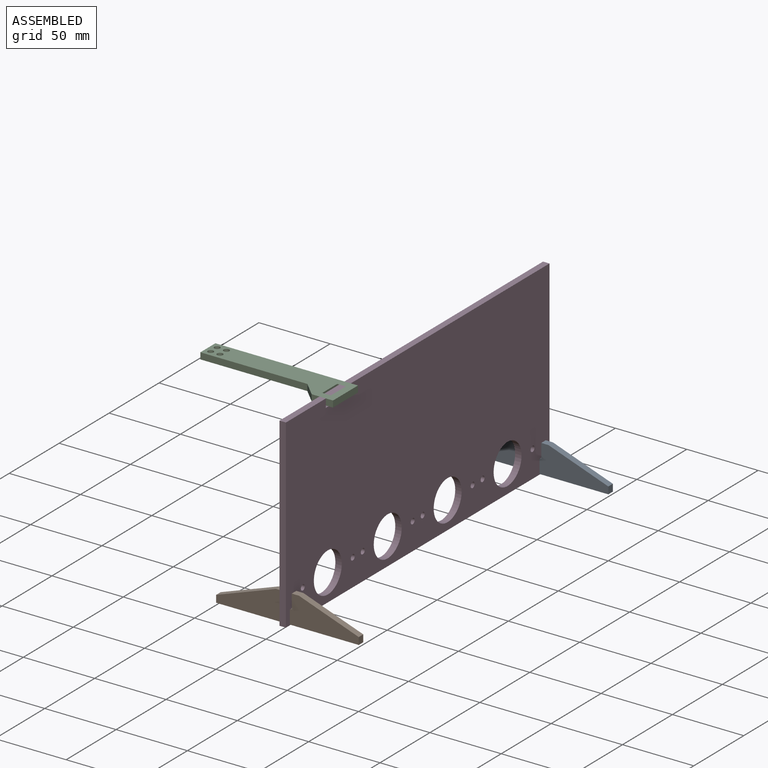
[diagram: assembled view]
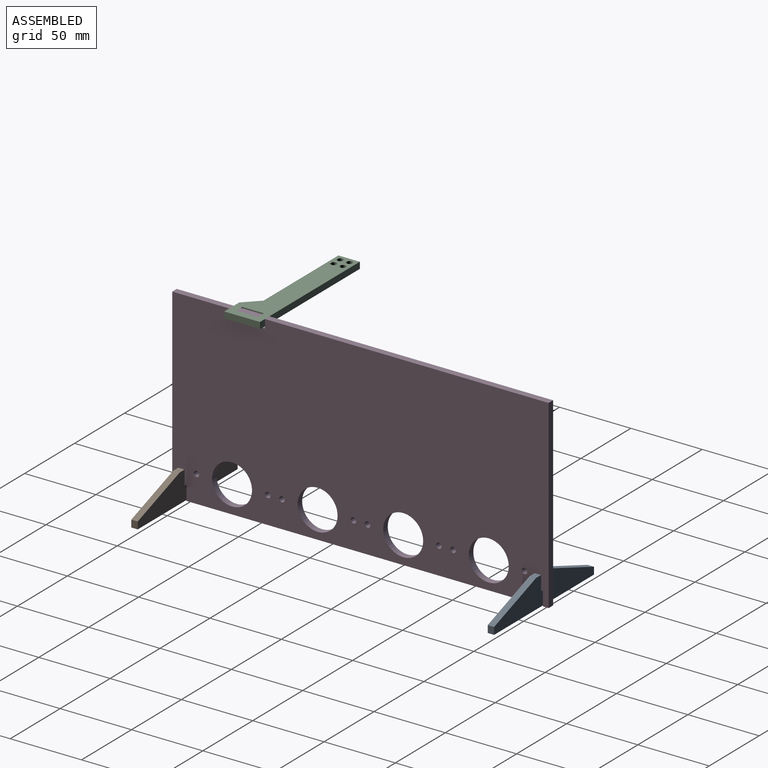
[diagram: assembled view, second angle]
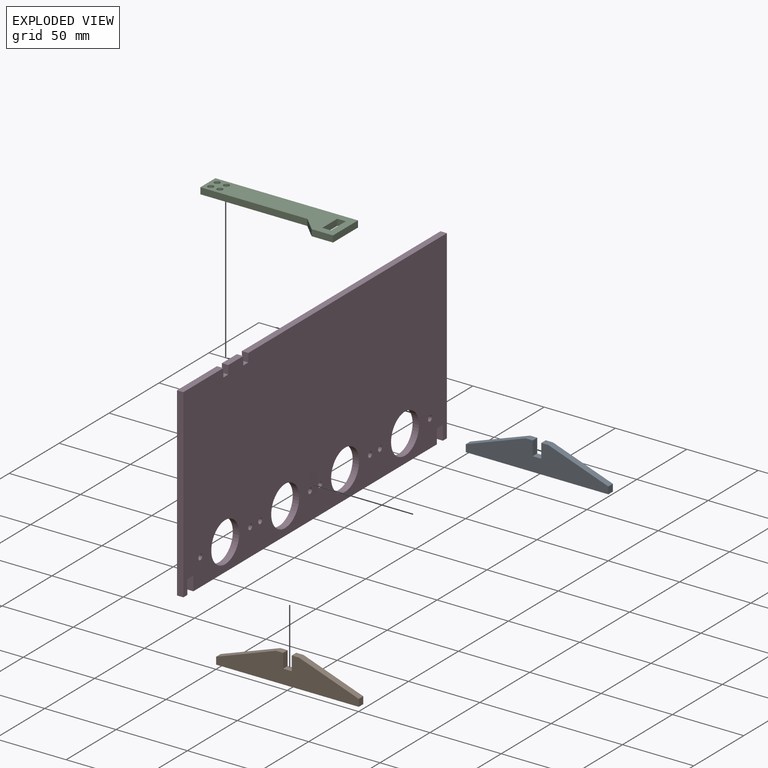
[diagram: exploded view]
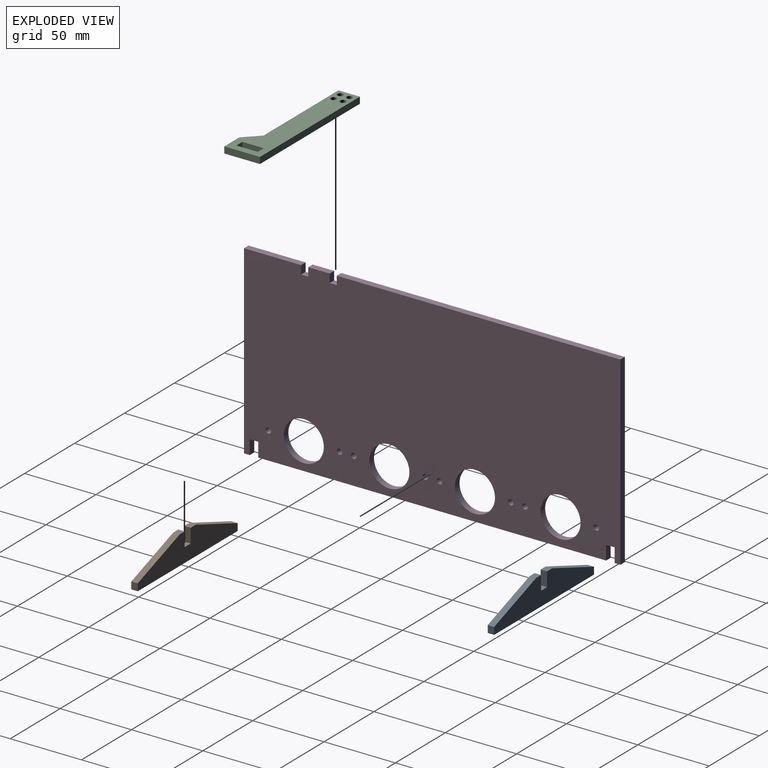
[diagram: exploded view, second angle]
ASSEMBLY  parts=4 mates=4
PART A: 12 faces, bbox 100x20x4.5 mm
  f0: plane 5x4.5mm, normal (0,1,0), area 22.5mm2, adj f1,f9,f10,f11
  f1: plane 42x15mm, normal (-0.34,0.94,0), area 200.7mm2, adj f0,f2,f10,f11
  f2: plane 5x4.5mm, normal (-1,0,0), area 22.5mm2, adj f1,f3,f10,f11
  f3: plane 100x4.5mm, normal (0,-1,0), area 450mm2, adj f2,f4,f10,f11
  f4: plane 5x4.5mm, normal (1,0,0), area 22.5mm2, adj f3,f5,f10,f11
  f5: plane 42x15mm, normal (0.34,0.94,0), area 200.7mm2, adj f4,f6,f10,f11
  f6: plane 5x4.5mm, normal (0,1,0), area 22.5mm2, adj f5,f7,f10,f11
  f7: plane 10x4.5mm, normal (-1,0,0), area 45mm2, adj f6,f8,f10,f11
  f8: plane 5.99x4.5mm, normal (0,1,0), area 27mm2, adj f7,f9,f10,f11
  f9: plane 10x4.5mm, normal (1,0,0), area 45mm2, adj f0,f8,f10,f11
  f10: plane 100x20mm, normal (0,0,1), area 1310mm2, adj f0,f1,f2,f3,f4,f5,f6,f7
  f11: plane 100x20mm, normal (0,0,-1), area 1310mm2, adj f0,f1,f2,f3,f4,f5,f6,f7
PART B: 12 faces, bbox 100x20x4.5 mm
  f0: plane 5x4.5mm, normal (1,0,0), area 22.5mm2, adj f1,f9,f10,f11
  f1: plane 42x15mm, normal (0.34,0.94,0), area 200.7mm2, adj f0,f2,f10,f11
  f2: plane 5x4.5mm, normal (0,1,0), area 22.5mm2, adj f1,f3,f10,f11
  f3: plane 10x4.5mm, normal (-1,0,0), area 45mm2, adj f2,f4,f10,f11
  f4: plane 5.99x4.5mm, normal (0,1,0), area 27mm2, adj f3,f5,f10,f11
  f5: plane 10x4.5mm, normal (1,0,0), area 45mm2, adj f4,f6,f10,f11
  f6: plane 5x4.5mm, normal (0,1,0), area 22.5mm2, adj f5,f7,f10,f11
  f7: plane 42x15mm, normal (-0.34,0.94,0), area 200.7mm2, adj f6,f8,f10,f11
  f8: plane 5x4.5mm, normal (-1,0,0), area 22.5mm2, adj f7,f9,f10,f11
  f9: plane 100x4.5mm, normal (0,-1,0), area 450mm2, adj f0,f8,f10,f11
  f10: plane 100x20mm, normal (0,0,1), area 1310mm2, adj f0,f1,f2,f3,f4,f5,f6,f7
  f11: plane 100x20mm, normal (0,0,-1), area 1310mm2, adj f0,f1,f2,f3,f4,f5,f6,f7
PART C: 16 faces, bbox 100x25x4.5 mm
  f0: plane 15x4.5mm, normal (-1,0,0), area 67.5mm2, adj f1,f13,f14,f15
  f1: plane 5.99x4.5mm, normal (0,1,0), area 27mm2, adj f0,f2,f14,f15
  f2: plane 15x4.5mm, normal (1,0,0), area 67.5mm2, adj f1,f13,f14,f15
  f3: plane 100x4.5mm, normal (0,1,0), area 450mm2, adj f4,f8,f14,f15
  f4: plane 15x4.5mm, normal (-1,0,0), area 67.5mm2, adj f3,f5,f14,f15
  f5: plane 75x4.5mm, normal (0,-1,0), area 337.5mm2, adj f4,f6,f14,f15
  f6: plane 10x10mm, normal (-0.71,-0.71,0), area 63.6mm2, adj f5,f7,f14,f15
  f7: plane 15x4.5mm, normal (0,-1,0), area 67.5mm2, adj f6,f8,f14,f15
  f8: plane 25x4.5mm, normal (1,0,0), area 112.5mm2, adj f3,f7,f14,f15
  f9: cylinder r=2mm len=4.5mm, axis (0,0,-1), area 56.5mm2, adj f14,f15
  f10: cylinder r=2mm len=4.5mm, axis (0,0,-1), area 56.5mm2, adj f14,f15
  f11: cylinder r=2mm len=4.5mm, axis (0,0,-1), area 56.5mm2, adj f14,f15
  f12: cylinder r=2mm len=4.5mm, axis (0,0,-1), area 56.5mm2, adj f14,f15
  f13: plane 5.99x4.5mm, normal (0,-1,0), area 27mm2, adj f0,f2,f14,f15
  f14: plane 100x25mm, normal (0,0,1), area 1559.8mm2, adj f0,f1,f2,f3,f4,f5,f6,f7
  f15: plane 100x25mm, normal (0,0,-1), area 1559.8mm2, adj f0,f1,f2,f3,f4,f5,f6,f7
PART D: 34 faces, bbox 263.9x130x4.5 mm
  f0: plane 4.5x4mm, normal (0,-1,0), area 18mm2, adj f1,f31,f32,f33
  f1: plane 130x4.5mm, normal (1,0,0), area 585mm2, adj f0,f2,f32,f33
  f2: plane 198.86x4.5mm, normal (0,1,0), area 894.9mm2, adj f1,f3,f32,f33
  f3: plane 5.99x4.5mm, normal (-1,0,0), area 27mm2, adj f2,f4,f32,f33
  f4: plane 5x4.5mm, normal (0,1,0), area 22.5mm2, adj f3,f5,f32,f33
  f5: plane 5.99x4.5mm, normal (1,0,0), area 27mm2, adj f4,f6,f32,f33
  f6: plane 15x4.5mm, normal (0,1,0), area 67.5mm2, adj f5,f7,f32,f33
  f7: plane 5.99x4.5mm, normal (-1,0,0), area 27mm2, adj f6,f8,f32,f33
  f8: plane 5x4.5mm, normal (0,1,0), area 22.5mm2, adj f7,f9,f32,f33
  f9: plane 5.99x4.5mm, normal (1,0,0), area 27mm2, adj f8,f10,f32,f33
  f10: plane 40x4.5mm, normal (0,1,0), area 180mm2, adj f9,f11,f32,f33
  f11: plane 130x4.5mm, normal (-1,0,0), area 585mm2, adj f10,f12,f32,f33
  f12: plane 4.5x4mm, normal (0,-1,0), area 18mm2, adj f11,f13,f32,f33
  f13: plane 10x4.5mm, normal (1,0,0), area 45mm2, adj f12,f14,f32,f33
  f14: plane 5.99x4.5mm, normal (0,-1,0), area 27mm2, adj f13,f15,f32,f33
  f15: plane 10x4.5mm, normal (-1,0,0), area 45mm2, adj f14,f16,f32,f33
  f16: plane 243.87x4.5mm, normal (0,-1,0), area 1097.4mm2, adj f15,f17,f32,f33
  f17: plane 10x4.5mm, normal (1,0,0), area 45mm2, adj f16,f18,f32,f33
  f18: plane 5.99x4.5mm, normal (0,-1,0), area 27mm2, adj f17,f31,f32,f33
  f19: cylinder r=1.93mm len=4.5mm, axis (0,0,-1), area 54.6mm2, adj f32,f33
  f20: cylinder r=14mm len=28mm, axis (0,0,-1), area 395.8mm2, adj f32,f33
  f21: cylinder r=1.93mm len=4.5mm, axis (0,0,-1), area 54.6mm2, adj f32,f33
  f22: cylinder r=14mm len=28mm, axis (0,0,-1), area 395.8mm2, adj f32,f33
  f23: cylinder r=1.93mm len=4.5mm, axis (0,0,-1), area 54.6mm2, adj f32,f33
  f24: cylinder r=1.93mm len=4.5mm, axis (0,0,-1), area 54.6mm2, adj f32,f33
  f25: cylinder r=14mm len=28mm, axis (0,0,-1), area 395.8mm2, adj f32,f33
  f26: cylinder r=1.93mm len=4.5mm, axis (0,0,-1), area 54.6mm2, adj f32,f33
  f27: cylinder r=1.93mm len=4.5mm, axis (0,0,-1), area 54.6mm2, adj f32,f33
  f28: cylinder r=14mm len=28mm, axis (0,0,-1), area 395.8mm2, adj f32,f33
  f29: cylinder r=1.93mm len=4.5mm, axis (0,0,-1), area 54.6mm2, adj f32,f33
  f30: cylinder r=1.93mm len=4.5mm, axis (0,0,-1), area 54.6mm2, adj f32,f33
  f31: plane 10x4.5mm, normal (-1,0,0), area 45mm2, adj f0,f18,f32,f33
  f32: plane 263.86x130mm, normal (0,0,1), area 31565.4mm2, adj f0,f1,f2,f3,f4,f5,f6,f7
  f33: plane 263.86x130mm, normal (0,0,-1), area 31565.4mm2, adj f0,f1,f2,f3,f4,f5,f6,f7
PLACE A rot(axis=(1,0,0),90deg) t=(102.51,151,-94.45)mm
PLACE B rot(axis=(1,0,0),90deg) t=(102.51,-98.87,-64.45)mm
PLACE C t=(59.76,-173.12,61.05)mm
PLACE D rot(axis=(0.58,0.58,0.58),120deg) t=(0.26,-108.12,-64.45)mm fixed
MATE planar D.f6 <-> C.f14  axis (0,0,1) through (2.51,-55.62,65.55)mm
MATE fastened D.f6 <-> C.f14  axis (0,0,1) through (4.76,-48.12,65.55)mm
MATE fastened B.f4 <-> D.f14  axis (0,0,1) through (2.51,-101.12,-54.45)mm
MATE fastened A.f8 <-> D.f18  axis (0,0,1) through (2.51,148.75,-54.45)mm
